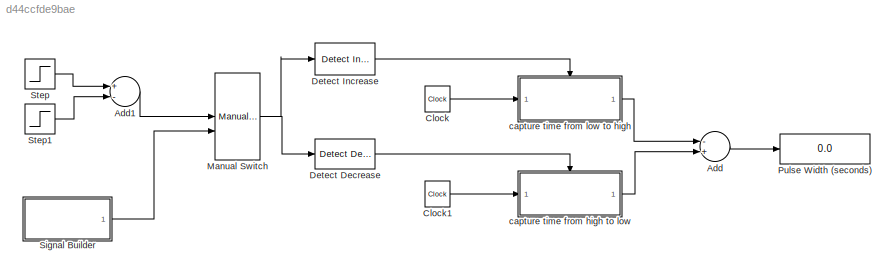
MODEL slx_d44ccfde9bae
KIND model
CONFIG AbsTol = auto
CONFIG FixedStep = 0.01
CONFIG MaxStep = auto
CONFIG MinStep = auto
CONFIG RelTol = 1e-3
CONFIG SampleTimeConstraint = Unconstrained
CONFIG Solver = FixedStepDiscrete
CONFIG SolverMode = Auto
CONFIG SolverName = FixedStepDiscrete
CONFIG StartTime = 0.0
CONFIG StopTime = 15
BLOCK [Sum] Add
  InputSameDT = off
  Inputs = -+
  OutDataTypeStr = Inherit: Inherit via internal rule
  Ports = [2, 1]
  SaturateOnIntegerOverflow = off
BLOCK [Sum] Add1
  InputSameDT = off
  Inputs = +-
  OutDataTypeStr = Inherit: Inherit via internal rule
  Ports = [2, 1]
  SaturateOnIntegerOverflow = off
BLOCK [Clock] Clock
BLOCK [Clock] Clock1
BLOCK [Reference] Detect Decrease  REF=simulink/Logic and Bit
Operations/Detect
Decrease
  Ports = [1, 1]
  SourceBlock = simulink/Logic and Bit\nOperations/Detect\nDecrease
  SourceType = Detect Decrease
BLOCK [Reference] Detect Increase  REF=simulink/Logic and Bit
Operations/Detect
Increase
  Ports = [1, 1]
  SourceBlock = simulink/Logic and Bit\nOperations/Detect\nIncrease
  SourceType = Detect Increase
BLOCK [ManualSwitch] Manual Switch
  CurrentSetting = 0
BLOCK [Display] Pulse Width (seconds)
  Decimation = 1
  Ports = [1]
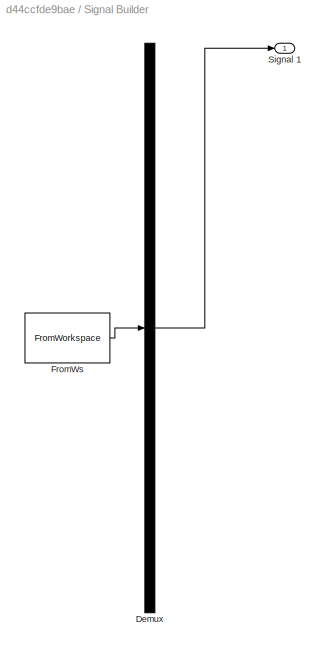
BLOCK [SubSystem] Signal Builder
  ClipboardFcn = sigbuilder_block('clipboard');
  CloseFcn = sigbuilder_block('close');
  ContinueFcn = sigbuilder_block('continue');
  CopyFcn = sigbuilder_block('copy');
  DeleteFcn = sigbuilder_block('delete');
  LoadFcn = sigbuilder_block('load');
  MaskHideContents = on
  ModelCloseFcn = sigbuilder_block('modelClose');
  NameChangeFcn = sigbuilder_block('namechange');
  OpenFcn = sigbuilder_block('open',[453.6 124.2 550.8 400.2 ]);
  PauseFcn = sigbuilder_block('pause');
  Ports = [0, 1]
  PreSaveFcn = sigbuilder_block('preSave');
  RequestExecContextInheritance = off
  StartFcn = sigbuilder_block('start');
  StopFcn = sigbuilder_block('stop');
  Tag = STV Subsys
  Variant = off
BLOCK [Demux] Signal Builder/Demux
  Outputs = 1
  Ports = [1, 1]
  Tag = STV Demux
BLOCK [FromWorkspace] Signal Builder/FromWs
  SampleTime = 0
  Tag = STV FromWs
  VariableName = tuvar
  ZeroCross = on
BLOCK [Outport] Signal Builder/Signal 1
  IconDisplay = Port number
  Tag = STV Outport
BLOCK [Step] Step
  SampleTime = 0.01
BLOCK [Step] Step1
  SampleTime = 0.01
  Time = 1.5
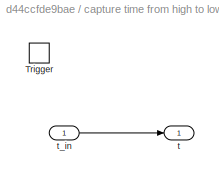
BLOCK [SubSystem] capture time from high to low
  Ports = [1, 1, 0, 1]
  RequestExecContextInheritance = off
  TreatAsAtomicUnit = on
  Variant = off
BLOCK [TriggerPort] capture time from high to low/Trigger
  Ports = []
  StatesWhenEnabling = held
BLOCK [Outport] capture time from high to low/t
  IconDisplay = Port number
BLOCK [Inport] capture time from high to low/t_in
  IconDisplay = Port number
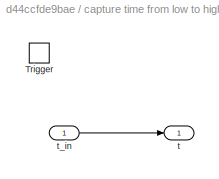
BLOCK [SubSystem] capture time from low to high 
  Ports = [1, 1, 0, 1]
  RequestExecContextInheritance = off
  TreatAsAtomicUnit = on
  Variant = off
BLOCK [TriggerPort] capture time from low to high /Trigger
  Ports = []
  StatesWhenEnabling = held
BLOCK [Outport] capture time from low to high /t
  IconDisplay = Port number
BLOCK [Inport] capture time from low to high /t_in
  IconDisplay = Port number
LINE Add1:1 -> Manual Switch:1
LINE Add:1 -> Pulse Width (seconds):1
LINE Clock1:1 -> capture time from high to low:1
LINE Clock:1 -> capture time from low to high :1
LINE Detect Decrease:1 -> capture time from high to low:trigger
LINE Detect Increase:1 -> capture time from low to high :trigger
NET Manual Switch:1 -> Detect Decrease:1, Detect Increase:1
LINE Signal Builder:1 -> Manual Switch:2
LINE Step1:1 -> Add1:2
LINE Step:1 -> Add1:1
LINE capture time from high to low/t_in:1 -> capture time from high to low/t:1
LINE capture time from high to low:1 -> Add:2
LINE capture time from low to high /t_in:1 -> capture time from low to high /t:1
LINE capture time from low to high :1 -> Add:1
note: NET lines group one-source signal fan-out (src -> all destinations, sorted); 1:1 wires keep LINE
